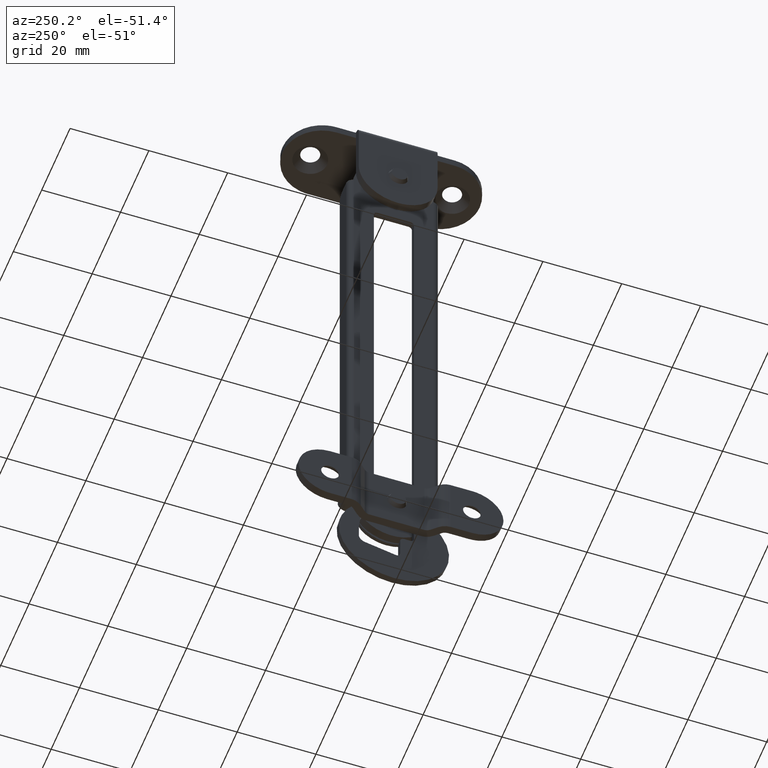
[diagram: clean part render]
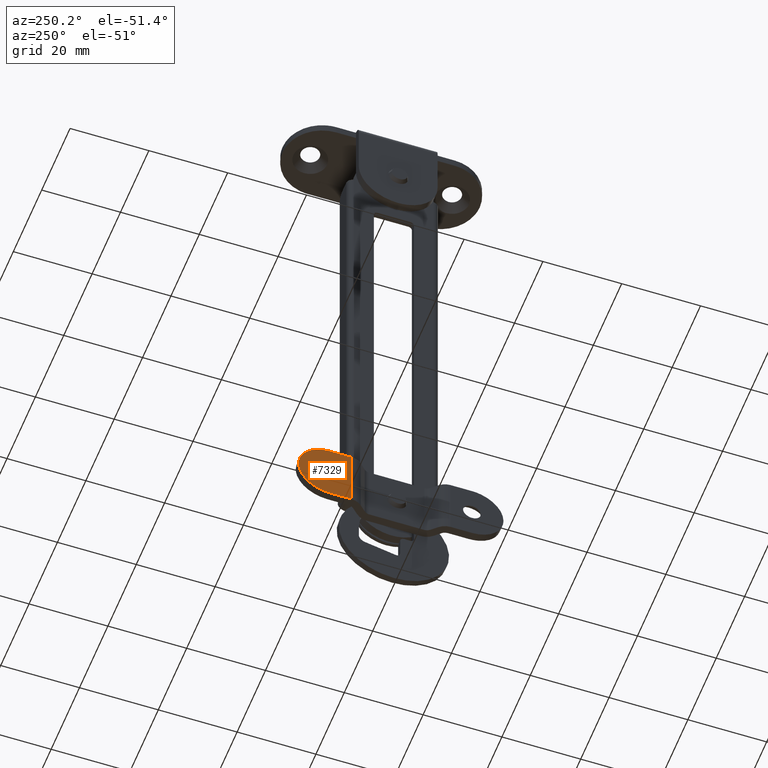
[diagram: same view with one face highlighted and labeled with its STEP entity id]
A machine part, auxiliary view. The second image highlights one B-rep face of the part: STEP entity #7329.
In plain terms, the highlighted face is a freeform B-spline surface patch.
Its self-contained STEP definition (entity closure, byte-faithful):
#6323=CARTESIAN_POINT('',(-3.713857E-015,19.632091934598780,-124.548813169886500));
#6324=VERTEX_POINT('',#6323);
#6330=CARTESIAN_POINT('',(-3.719742E-015,18.0,-125.250015000000000));
#6331=VERTEX_POINT('',#6330);
#6332=CARTESIAN_POINT('',(-3.713857E-015,19.632091934598780,-124.548813169886500));
#6333=CARTESIAN_POINT('',(-3.714799E-015,19.370767841540321,-124.825592138109700));
#6334=CARTESIAN_POINT('',(-3.716724E-015,18.836965098227939,-125.156715285443600));
#6335=CARTESIAN_POINT('',(-3.718919E-015,18.228257654433431,-125.250086177752490));
#6336=CARTESIAN_POINT('',(-3.719742E-015,18.0,-125.250015000000000));
#6337=B_SPLINE_CURVE_WITH_KNOTS('',3,(#6332,#6333,#6334,#6335,#6336),.UNSPECIFIED.,.F.,.U.,(4,1,4),(0.000000186710792,1.141291373621727,1.826099096961146),.UNSPECIFIED.);
#6338=EDGE_CURVE('',#6324,#6331,#6337,.T.);
#6340=CARTESIAN_POINT('',(-3.719742E-015,15.750000000000011,-123.000015129932390));
#6341=VERTEX_POINT('',#6340);
#6342=CARTESIAN_POINT('',(-3.719742E-015,18.0,-125.250015000000000));
#6343=CARTESIAN_POINT('',(-3.719742E-015,17.613227752485880,-125.250883923693000));
#6344=CARTESIAN_POINT('',(-3.719742E-015,16.988404726368319,-125.084632394083500));
#6345=CARTESIAN_POINT('',(-3.719742E-015,16.289721438706540,-124.525254738812810));
#6346=CARTESIAN_POINT('',(-3.719742E-015,15.860036081997769,-123.846571145263890));
#6347=CARTESIAN_POINT('',(-3.719742E-015,15.749674110821569,-123.294595176913010));
#6348=CARTESIAN_POINT('',(-3.719742E-015,15.750000000000011,-123.000015129932390));
#6349=B_SPLINE_CURVE_WITH_KNOTS('',3,(#6342,#6343,#6344,#6345,#6346,#6347,#6348),.UNSPECIFIED.,.F.,.U.,(4,1,1,1,4),(0.000000630108882,1.159744599929714,1.877595262964349,2.650785438680778,3.534380351650883),.UNSPECIFIED.);
#6350=EDGE_CURVE('',#6331,#6341,#6349,.T.);
#6352=CARTESIAN_POINT('',(-3.713857E-015,16.367908065401231,-121.451216830113490));
#6353=VERTEX_POINT('',#6352);
#6354=CARTESIAN_POINT('',(-3.719742E-015,15.750000000000011,-123.000015129932390));
#6355=CARTESIAN_POINT('',(-3.718795E-015,15.749856591697020,-122.750887156355800));
#6356=CARTESIAN_POINT('',(-3.716632E-015,15.845515528010530,-122.181525494481700));
#6357=CARTESIAN_POINT('',(-3.714739E-015,16.147078597251362,-121.683317765513810));
#6358=CARTESIAN_POINT('',(-3.713857E-015,16.367908065401231,-121.451216830113490));
#6359=B_SPLINE_CURVE_WITH_KNOTS('',3,(#6354,#6355,#6356,#6357,#6358),.UNSPECIFIED.,.F.,.U.,(4,1,4),(0.000000133875710,0.747388235165605,1.708281726922022),.UNSPECIFIED.);
#6360=EDGE_CURVE('',#6341,#6353,#6359,.T.);
#6395=CARTESIAN_POINT('',(-3.719742E-015,18.0,-120.750015000000000));
#6396=VERTEX_POINT('',#6395);
#6397=CARTESIAN_POINT('',(-3.713857E-015,16.367908065401231,-121.451216830113490));
#6398=CARTESIAN_POINT('',(-3.714564E-015,16.564168921980890,-121.244051179402500));
#6399=CARTESIAN_POINT('',(-3.716382E-015,17.068325248174521,-120.883654870281900));
#6400=CARTESIAN_POINT('',(-3.718576E-015,17.676584308733279,-120.749565742186700));
#6401=CARTESIAN_POINT('',(-3.719742E-015,18.0,-120.750015000000000));
#6402=B_SPLINE_CURVE_WITH_KNOTS('',3,(#6397,#6398,#6399,#6400,#6401),.UNSPECIFIED.,.F.,.U.,(4,1,4),(0.000000186710797,0.856034203241147,1.826099096961072),.UNSPECIFIED.);
#6403=EDGE_CURVE('',#6353,#6396,#6402,.T.);
#6405=CARTESIAN_POINT('',(-3.719742E-015,20.249999999999989,-123.000014870067600));
#6406=VERTEX_POINT('',#6405);
#6407=CARTESIAN_POINT('',(-3.719742E-015,18.0,-120.750015000000000));
#6408=CARTESIAN_POINT('',(-3.719742E-015,18.331451307661769,-120.749527562193800));
#6409=CARTESIAN_POINT('',(-3.719742E-015,18.846371292820610,-120.866025711108310));
#6410=CARTESIAN_POINT('',(-3.719742E-015,19.488880427563000,-121.272927297955600));
#6411=CARTESIAN_POINT('',(-3.719742E-015,19.884017302944589,-121.719827731288700));
#6412=CARTESIAN_POINT('',(-3.719742E-015,20.176409976225191,-122.319040753324200));
#6413=CARTESIAN_POINT('',(-3.719742E-015,20.250191820786270,-122.742280307222500));
#6414=CARTESIAN_POINT('',(-3.719742E-015,20.249999999999989,-123.000014870067600));
#6415=B_SPLINE_CURVE_WITH_KNOTS('',3,(#6407,#6408,#6409,#6410,#6411,#6412,#6413,#6414),.UNSPECIFIED.,.F.,.U.,(4,1,1,1,1,4),(0.000000630096555,0.994049428537663,1.546356633605731,2.264195869791016,2.761241570169414,3.534380351650894),.UNSPECIFIED.);
#6416=EDGE_CURVE('',#6396,#6406,#6415,.T.);
#6418=CARTESIAN_POINT('',(-3.719742E-015,20.249999999999989,-123.000014870067600));
#6419=CARTESIAN_POINT('',(-3.718524E-015,20.250414699921009,-123.320383013062500));
#6420=CARTESIAN_POINT('',(-3.716362E-015,20.126220417465959,-123.889355830008200));
#6421=CARTESIAN_POINT('',(-3.714543E-015,19.803684127235240,-124.368198447364610));
#6422=CARTESIAN_POINT('',(-3.713857E-015,19.632091934598780,-124.548813169886500));
#6423=B_SPLINE_CURVE_WITH_KNOTS('',3,(#6418,#6419,#6420,#6421,#6422),.UNSPECIFIED.,.F.,.U.,(4,1,4),(0.000000133872273,0.960893625641499,1.708281726921906),.UNSPECIFIED.);
#6424=EDGE_CURVE('',#6406,#6324,#6423,.T.);
#7243=CARTESIAN_POINT('',(0.0,12.563934000000019,-115.000015000000000));
#7244=VERTEX_POINT('',#7243);
#7253=CARTESIAN_POINT('',(0.0,12.563934000000019,-131.000014999999990));
#7254=VERTEX_POINT('',#7253);
#7255=CARTESIAN_POINT('',(0.0,12.563934000000019,-131.000014999999990));
#7256=CARTESIAN_POINT('',(0.0,12.563934000000019,-115.000015000000000));
#7257=QUASI_UNIFORM_CURVE('',1,(#7255,#7256),.UNSPECIFIED.,.F.,.U.);
#7258=EDGE_CURVE('',#7254,#7244,#7257,.T.);
#7272=CARTESIAN_POINT('',(0.0,11.892802529341770,-131.799214968988990));
#7273=CARTESIAN_POINT('',(0.0,11.892802529341770,-114.200814601857700));
#7274=CARTESIAN_POINT('',(0.0,26.671131831040739,-131.799214968988990));
#7275=CARTESIAN_POINT('',(0.0,26.671131831040739,-114.200814601857700));
#7276=B_SPLINE_SURFACE_WITH_KNOTS('',1,1,((#7272,#7274),(#7273,#7275)),.UNSPECIFIED.,.F.,.F.,.U.,(2,2),(2,2),(0.0,17.598400367131291),(0.0,14.778329301698980),.UNSPECIFIED.);
#7277=CARTESIAN_POINT('',(0.0,18.0,-115.000015000000000));
#7278=VERTEX_POINT('',#7277);
#7279=CARTESIAN_POINT('',(0.0,18.0,-115.000015000000000));
#7280=CARTESIAN_POINT('',(0.0,12.563934000000019,-115.000015000000000));
#7281=QUASI_UNIFORM_CURVE('',1,(#7279,#7280),.UNSPECIFIED.,.F.,.U.);
#7282=EDGE_CURVE('',#7278,#7244,#7281,.T.);
#7283=ORIENTED_EDGE('',*,*,#7282,.F.);
#7284=CARTESIAN_POINT('',(0.0,25.999999999999119,-123.000018755147810));
#7285=VERTEX_POINT('',#7284);
#7286=CARTESIAN_POINT('',(0.0,18.0,-115.000015000000000));
#7287=CARTESIAN_POINT('',(0.0,19.014677609534580,-114.998980204324890));
#7288=CARTESIAN_POINT('',(0.0,20.355636157306119,-115.258663611616100));
#7289=CARTESIAN_POINT('',(0.0,22.074670297861388,-116.071972917472910));
#7290=CARTESIAN_POINT('',(0.0,23.344542385805362,-116.954511789599000));
#7291=CARTESIAN_POINT('',(0.0,24.540239002671999,-118.273777123727300));
#7292=CARTESIAN_POINT('',(0.0,25.374350332717992,-119.767682567706600));
#7293=CARTESIAN_POINT('',(0.0,25.880176002317150,-121.331098205059800));
#7294=CARTESIAN_POINT('',(0.0,26.000107706108459,-122.410978841344100));
#7295=CARTESIAN_POINT('',(0.0,25.999999999999119,-123.000018755147810));
#7296=B_SPLINE_CURVE_WITH_KNOTS('',3,(#7286,#7287,#7288,#7289,#7290,#7291,#7292,#7293,#7294,#7295),.UNSPECIFIED.,.F.,.U.,(4,1,1,1,1,1,1,4),(0.000000339057605,3.043436857074635,4.025198768333983,5.694221550222229,7.657628652973148,9.326663097428259,10.799339717972920,12.566451579512160),.UNSPECIFIED.);
#7297=EDGE_CURVE('',#7278,#7285,#7296,.T.);
#7298=ORIENTED_EDGE('',*,*,#7297,.T.);
#7299=CARTESIAN_POINT('',(0.0,18.0,-131.000014999999990));
#7300=VERTEX_POINT('',#7299);
#7301=CARTESIAN_POINT('',(0.0,25.999999999999119,-123.000018755147810));
#7302=CARTESIAN_POINT('',(0.0,26.000439862934801,-123.818197698257510));
#7303=CARTESIAN_POINT('',(0.0,25.792264831549570,-125.159632984401200));
#7304=CARTESIAN_POINT('',(0.0,25.040768662380369,-126.912582721158900));
#7305=CARTESIAN_POINT('',(0.0,23.970472824726290,-128.452697710788410));
#7306=CARTESIAN_POINT('',(0.0,22.367422859805941,-129.835801250508890));
#7307=CARTESIAN_POINT('',(0.0,20.257912633018691,-130.786018251032200));
#7308=CARTESIAN_POINT('',(0.0,18.752691894389510,-131.000273647412000));
#7309=CARTESIAN_POINT('',(0.0,18.0,-131.000014999999990));
#7310=B_SPLINE_CURVE_WITH_KNOTS('',3,(#7301,#7302,#7303,#7304,#7305,#7306,#7307,#7308,#7309),.UNSPECIFIED.,.F.,.U.,(4,1,1,1,1,1,4),(0.000000340145931,2.454372875755249,4.025197414455933,5.694219629513960,8.050335103555502,10.308424983578821,12.566447346559819),.UNSPECIFIED.);
#7311=EDGE_CURVE('',#7285,#7300,#7310,.T.);
#7312=ORIENTED_EDGE('',*,*,#7311,.T.);
#7313=CARTESIAN_POINT('',(0.0,18.0,-131.000014999999990));
#7314=CARTESIAN_POINT('',(0.0,12.563934000000019,-131.000014999999990));
#7315=QUASI_UNIFORM_CURVE('',1,(#7313,#7314),.UNSPECIFIED.,.F.,.U.);
#7316=EDGE_CURVE('',#7300,#7254,#7315,.T.);
#7317=ORIENTED_EDGE('',*,*,#7316,.T.);
#7318=ORIENTED_EDGE('',*,*,#7258,.T.);
#7319=EDGE_LOOP('',(#7283,#7298,#7312,#7317,#7318));
#7320=FACE_OUTER_BOUND('',#7319,.T.);
#7321=ORIENTED_EDGE('',*,*,#6416,.F.);
#7322=ORIENTED_EDGE('',*,*,#6403,.F.);
#7323=ORIENTED_EDGE('',*,*,#6360,.F.);
#7324=ORIENTED_EDGE('',*,*,#6350,.F.);
#7325=ORIENTED_EDGE('',*,*,#6338,.F.);
#7326=ORIENTED_EDGE('',*,*,#6424,.F.);
#7327=EDGE_LOOP('',(#7321,#7322,#7323,#7324,#7325,#7326));
#7328=FACE_BOUND('',#7327,.T.);
#7329=ADVANCED_FACE('',(#7320,#7328),#7276,.T.);